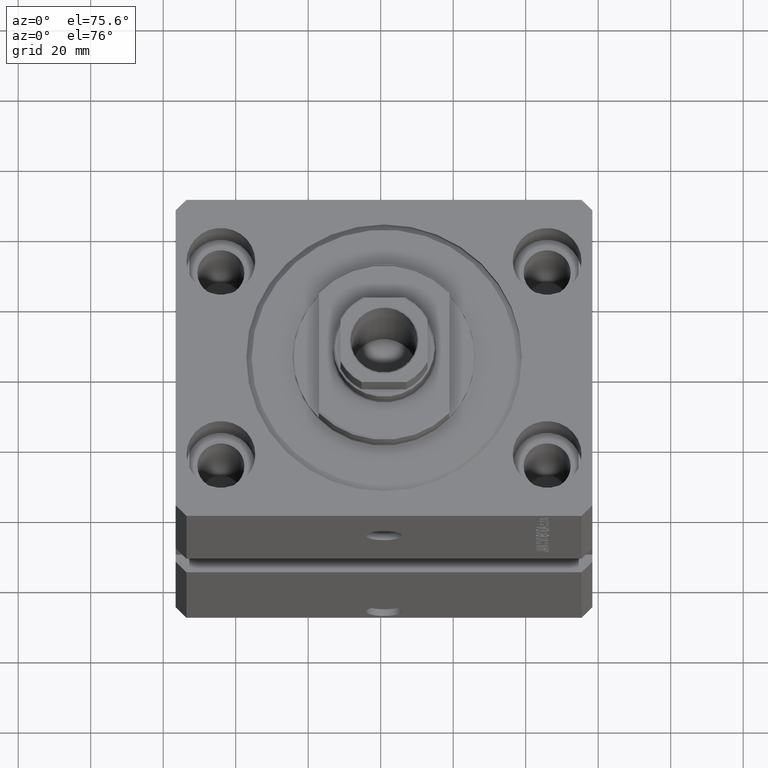
[diagram: clean part render]
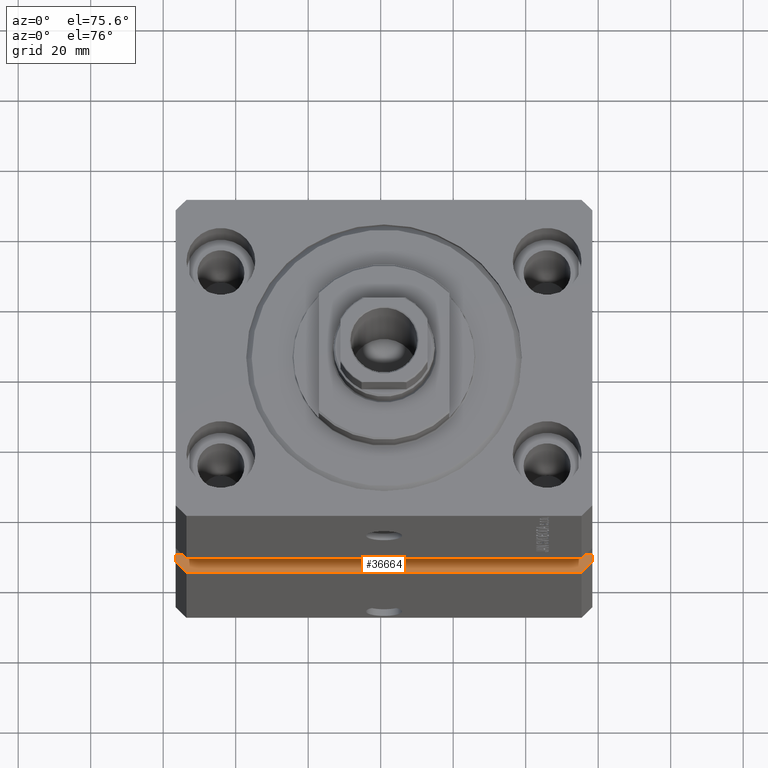
[diagram: same view with one face highlighted and labeled with its STEP entity id]
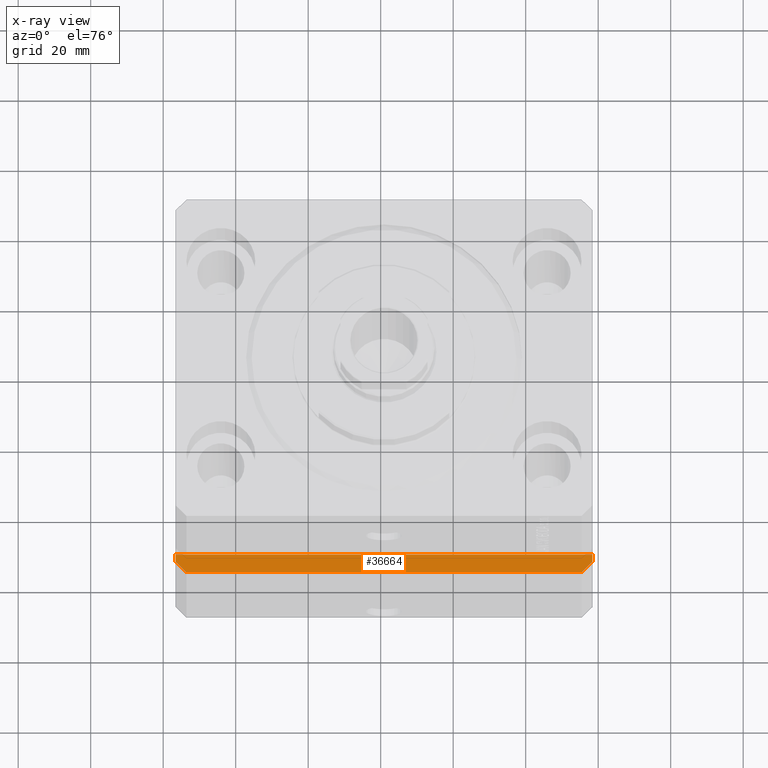
[diagram: x-ray of the same camera — body ghosted, the highlighted face saturated]
A machine part, auxiliary view. The second image highlights one B-rep face of the part: STEP entity #36664.
The next image is the same camera in x-ray: the body ghosted, the highlighted face saturated — about 0% of this face is hidden behind the body in this view.
In plain terms, the highlighted planar face has unit normal (0, 0, -1).
Its self-contained STEP definition (entity closure, byte-faithful):
#12 = CARTESIAN_POINT ( 'NONE',  ( -54.50000000000000711, -45.00000000000000000, -62.50000000000000000 ) ) ;
#214 = EDGE_CURVE ( 'NONE', #34737, #48850, #43888, .T. ) ;
#2222 = DIRECTION ( 'NONE',  ( 0.7071067811865483499, 0.7071067811865466846, 0.000000000000000000 ) ) ;
#3879 = ORIENTED_EDGE ( 'NONE', *, *, #41946, .T. ) ;
#5728 = ORIENTED_EDGE ( 'NONE', *, *, #48674, .T. ) ;
#5732 = DIRECTION ( 'NONE',  ( 1.176083712526788232E-16, -1.000000000000000000, -0.000000000000000000 ) ) ;
#6686 = DIRECTION ( 'NONE',  ( 0.000000000000000000, 0.000000000000000000, -1.000000000000000000 ) ) ;
#10365 = CARTESIAN_POINT ( 'NONE',  ( 57.50000000000000711, -39.99999999999998579, -62.50000000000000000 ) ) ;
#10492 = EDGE_CURVE ( 'NONE', #18318, #29285, #26670, .T. ) ;
#14562 = LINE ( 'NONE', #22270, #35313 ) ;
#14602 = ORIENTED_EDGE ( 'NONE', *, *, #214, .T. ) ;
#15352 = EDGE_LOOP ( 'NONE', ( #28045, #37247, #17213, #5728, #3879, #14602 ) ) ;
#15615 = DIRECTION ( 'NONE',  ( 1.176083712526788232E-16, -1.000000000000000000, -0.000000000000000000 ) ) ;
#15973 = DIRECTION ( 'NONE',  ( 1.000000000000000000, 1.206764157201257045E-16, 0.000000000000000000 ) ) ;
#17213 = ORIENTED_EDGE ( 'NONE', *, *, #10492, .F. ) ;
#18318 = VERTEX_POINT ( 'NONE', #48282 ) ;
#19096 = CARTESIAN_POINT ( 'NONE',  ( -57.50000000000000711, -40.00000000000000000, -62.50000000000000000 ) ) ;
#21930 = VERTEX_POINT ( 'NONE', #33426 ) ;
#22270 = CARTESIAN_POINT ( 'NONE',  ( -57.50000000000000711, -42.00000000000000711, -62.50000000000000000 ) ) ;
#22577 = DIRECTION ( 'NONE',  ( -1.000000000000000000, 0.000000000000000000, -0.000000000000000000 ) ) ;
#23555 = LINE ( 'NONE', #19096, #33045 ) ;
#24827 = CARTESIAN_POINT ( 'NONE',  ( 54.50000000000000711, -44.99999999999998579, -62.50000000000000000 ) ) ;
#25157 = VECTOR ( 'NONE', #5732, 1000.000000000000000 ) ;
#25335 = CARTESIAN_POINT ( 'NONE',  ( -57.50000000000000711, -40.00000000000000000, -62.50000000000000000 ) ) ;
#25509 = CARTESIAN_POINT ( 'NONE',  ( 54.49999999999997868, -44.99999999999998579, -62.50000000000000000 ) ) ;
#26670 = LINE ( 'NONE', #38863, #40997 ) ;
#28045 = ORIENTED_EDGE ( 'NONE', *, *, #46432, .T. ) ;
#28334 = LINE ( 'NONE', #24827, #47242 ) ;
#29285 = VERTEX_POINT ( 'NONE', #10365 ) ;
#31205 = CARTESIAN_POINT ( 'NONE',  ( 57.50000000000000711, -41.99999999999998579, -62.50000000000000000 ) ) ;
#31725 = CARTESIAN_POINT ( 'NONE',  ( -57.50000000000000711, -45.00000000000000000, -62.50000000000000000 ) ) ;
#31830 = FACE_OUTER_BOUND ( 'NONE', #15352, .T. ) ;
#32782 = EDGE_CURVE ( 'NONE', #29285, #45685, #38838, .T. ) ;
#33045 = VECTOR ( 'NONE', #15615, 1000.000000000000000 ) ;
#33426 = CARTESIAN_POINT ( 'NONE',  ( -57.50000000000000711, -42.00000000000000711, -62.50000000000000000 ) ) ;
#34737 = VERTEX_POINT ( 'NONE', #12 ) ;
#35313 = VECTOR ( 'NONE', #36716, 1000.000000000000000 ) ;
#36664 = ADVANCED_FACE ( 'NONE', ( #31830 ), #40765, .F. ) ;
#36716 = DIRECTION ( 'NONE',  ( 0.7071067811865492381, -0.7071067811865457964, 0.000000000000000000 ) ) ;
#37247 = ORIENTED_EDGE ( 'NONE', *, *, #32782, .F. ) ;
#38838 = LINE ( 'NONE', #42813, #25157 ) ;
#38863 = CARTESIAN_POINT ( 'NONE',  ( -57.50000000000000711, -40.00000000000000000, -62.50000000000000000 ) ) ;
#39922 = DIRECTION ( 'NONE',  ( 1.000000000000000000, 1.206764157201257045E-16, 0.000000000000000000 ) ) ;
#40302 = AXIS2_PLACEMENT_3D ( 'NONE', #25335, #6686, #22577 ) ;
#40765 = PLANE ( 'NONE',  #40302 ) ;
#40997 = VECTOR ( 'NONE', #15973, 1000.000000000000000 ) ;
#41946 = EDGE_CURVE ( 'NONE', #21930, #34737, #14562, .T. ) ;
#42813 = CARTESIAN_POINT ( 'NONE',  ( 57.50000000000000711, -39.99999999999998579, -62.50000000000000000 ) ) ;
#43888 = LINE ( 'NONE', #31725, #46354 ) ;
#45685 = VERTEX_POINT ( 'NONE', #31205 ) ;
#46354 = VECTOR ( 'NONE', #39922, 1000.000000000000000 ) ;
#46432 = EDGE_CURVE ( 'NONE', #48850, #45685, #28334, .T. ) ;
#47242 = VECTOR ( 'NONE', #2222, 1000.000000000000114 ) ;
#48282 = CARTESIAN_POINT ( 'NONE',  ( -57.50000000000000711, -40.00000000000000000, -62.50000000000000000 ) ) ;
#48674 = EDGE_CURVE ( 'NONE', #18318, #21930, #23555, .T. ) ;
#48850 = VERTEX_POINT ( 'NONE', #25509 ) ;